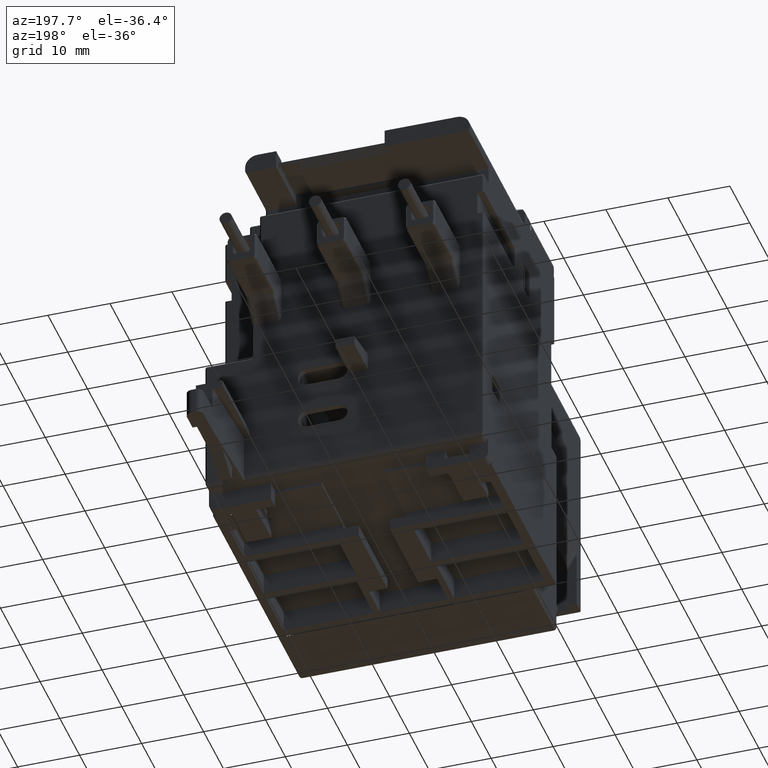
[diagram: clean part render]
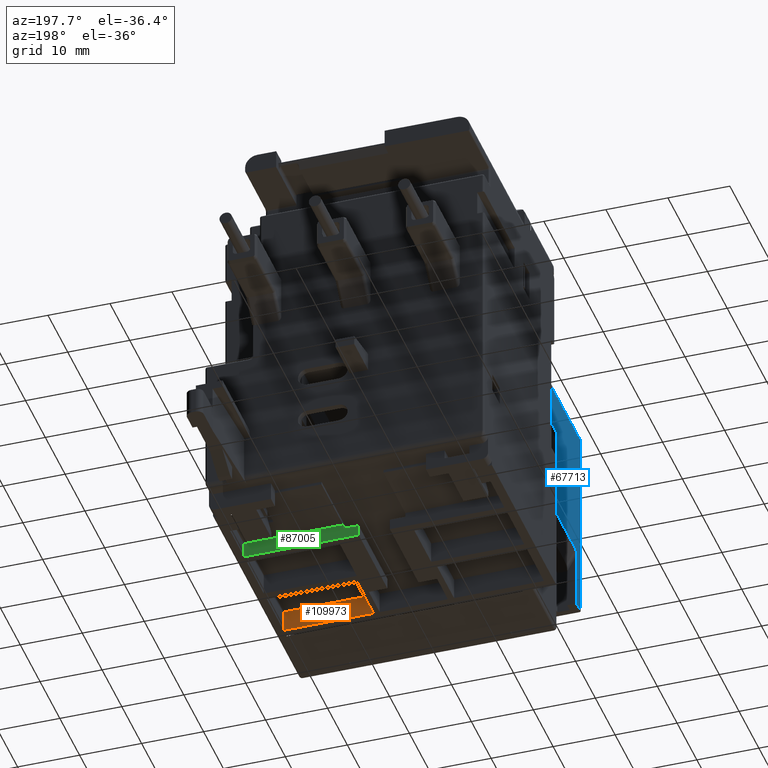
[diagram: same view with three faces highlighted in distinct colors, each labeled with its STEP entity id]
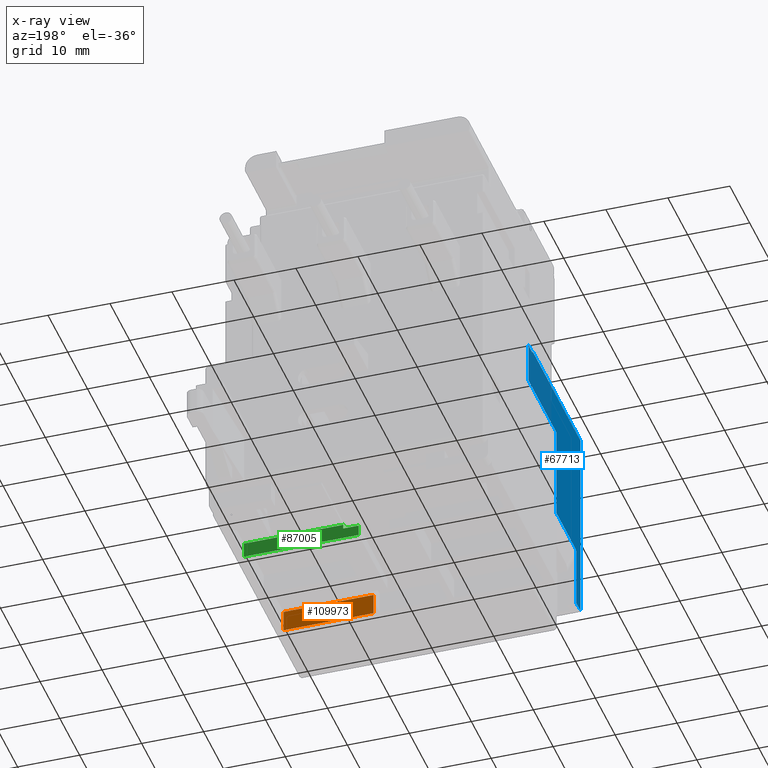
[diagram: x-ray of the same camera — body ghosted, the three highlighted faces saturated]
A machine part, auxiliary view with three faces highlighted in distinct colors.
The next image is the same camera in x-ray (body ghosted, the three faces saturated) — at least one of them is partly hidden behind the body in this view.
Their STEP definitions:

[orange] entity #109973 — the highlighted planar face has unit normal (0, 1, 0).
#56406=DIRECTION('',(1.E0,0.E0,0.E0));
#56407=VECTOR('',#56406,5.708661417323E-1);
#56408=CARTESIAN_POINT('',(2.559055118110E-1,-3.543307086614E-2,
-2.303149606299E0));
#56409=LINE('',#56408,#56407);
#56413=DIRECTION('',(0.E0,0.E0,-1.E0));
#56414=VECTOR('',#56413,1.377952755906E-1);
#56415=CARTESIAN_POINT('',(2.559055118110E-1,-3.543307086614E-2,
-2.165354330709E0));
#56416=LINE('',#56415,#56414);
#56427=DIRECTION('',(0.E0,0.E0,-1.E0));
#56428=VECTOR('',#56427,1.377952755906E-1);
#56429=CARTESIAN_POINT('',(8.267716535433E-1,-3.543307086614E-2,
-2.165354330709E0));
#56430=LINE('',#56429,#56428);
#56448=DIRECTION('',(1.E0,0.E0,0.E0));
#56449=VECTOR('',#56448,5.708661417323E-1);
#56450=CARTESIAN_POINT('',(2.559055118110E-1,-3.543307086614E-2,
-2.165354330709E0));
#56451=LINE('',#56450,#56449);
#57633=CARTESIAN_POINT('',(2.559055118110E-1,-3.543307086614E-2,
-2.303149606299E0));
#57635=VERTEX_POINT('',#57633);
#57639=CARTESIAN_POINT('',(8.267716535433E-1,-3.543307086614E-2,
-2.303149606299E0));
#57640=VERTEX_POINT('',#57639);
#67003=CARTESIAN_POINT('',(2.559055118110E-1,-3.543307086614E-2,
-2.165354330709E0));
#67004=VERTEX_POINT('',#67003);
#67007=CARTESIAN_POINT('',(8.267716535433E-1,-3.543307086614E-2,
-2.165354330709E0));
#67008=VERTEX_POINT('',#67007);
#109960=CARTESIAN_POINT('',(2.559055118110E-1,-3.543307086614E-2,
-2.165354330709E0));
#109961=DIRECTION('',(0.E0,1.E0,0.E0));
#109962=DIRECTION('',(-1.E0,0.E0,0.E0));
#109963=AXIS2_PLACEMENT_3D('',#109960,#109961,#109962);
#109964=PLANE('',#109963);
#109965=ORIENTED_EDGE('',*,*,#68142,.T.);
#109967=ORIENTED_EDGE('',*,*,#109966,.F.);
#109969=ORIENTED_EDGE('',*,*,#109968,.F.);
#109970=ORIENTED_EDGE('',*,*,#109951,.T.);
#109971=EDGE_LOOP('',(#109965,#109967,#109969,#109970));
#109972=FACE_OUTER_BOUND('',#109971,.F.);
#68142=EDGE_CURVE('',#57635,#57640,#56409,.T.);
#109951=EDGE_CURVE('',#67004,#57635,#56416,.T.);
#109966=EDGE_CURVE('',#67008,#57640,#56430,.T.);
#109968=EDGE_CURVE('',#67004,#67008,#56451,.T.);
#109973=ADVANCED_FACE('',(#109972),#109964,.T.);

[blue] entity #67713 — the highlighted planar face has unit normal (-1, 0, 0).
#945=DIRECTION('',(0.E0,0.E0,1.E0));
#946=VECTOR('',#945,1.279527559055E0);
#947=CARTESIAN_POINT('',(-7.421259842520E-1,-1.027559055118E0,
-1.811023622047E0));
#948=LINE('',#947,#946);
#976=DIRECTION('',(0.E0,1.E0,0.E0));
#977=VECTOR('',#976,9.527559055118E-1);
#978=CARTESIAN_POINT('',(-7.421259842520E-1,-1.027559055118E0,
-5.314960629921E-1));
#979=LINE('',#978,#977);
#990=DIRECTION('',(0.E0,1.E0,0.E0));
#991=VECTOR('',#990,7.874015748031E-2);
#992=CARTESIAN_POINT('',(-7.421259842520E-1,-1.027559055118E0,
-1.811023622047E0));
#993=LINE('',#992,#991);
#997=DIRECTION('',(0.E0,0.E0,1.E0));
#998=VECTOR('',#997,6.063749523091E-1);
#999=CARTESIAN_POINT('',(-7.421259842520E-1,-5.472440944882E-1,
-1.413461566482E0));
#1000=LINE('',#999,#998);
#1004=DIRECTION('',(0.E0,0.E0,1.E0));
#1005=VECTOR('',#1004,1.377952755906E-1);
#1006=CARTESIAN_POINT('',(-7.421259842520E-1,3.937007874016E-3,
-8.070866141732E-1));
#1007=LINE('',#1006,#1005);
#1011=DIRECTION('',(0.E0,-1.E0,0.E0));
#1012=VECTOR('',#1011,7.874015748031E-2);
#1013=CARTESIAN_POINT('',(-7.421259842520E-1,3.937007874016E-3,
-5.433070866142E-1));
#1014=LINE('',#1013,#1012);
#1018=DIRECTION('',(0.E0,0.E0,1.E0));
#1019=VECTOR('',#1018,1.181102362205E-2);
#1020=CARTESIAN_POINT('',(-7.421259842520E-1,-7.480314960630E-2,
-5.433070866142E-1));
#1021=LINE('',#1020,#1019);
#19252=DIRECTION('',(0.E0,0.E0,-1.E0));
#19253=VECTOR('',#19252,1.259842519685E-1);
#19254=CARTESIAN_POINT('',(-7.421259842520E-1,3.937007874016E-3,
-5.433070866142E-1));
#19255=LINE('',#19254,#19253);
#27008=DIRECTION('',(1.412890423215E-13,-1.E0,1.133800956901E-13));
#27009=VECTOR('',#27008,3.818897637795E-1);
#27010=CARTESIAN_POINT('',(-7.421259842520E-1,-5.472440944882E-1,
-1.413461566482E0));
#27011=LINE('',#27010,#27009);
#27022=CARTESIAN_POINT('',(-7.421259842520E-1,-9.291338582677E-1,
-1.413461566482E0));
#27023=CARTESIAN_POINT('',(-7.421259842520E-1,-9.303641732284E-1,
-1.413461566482E0));
#27024=CARTESIAN_POINT('',(-7.421259842520E-1,-9.324048428627E-1,
-1.413881526769E0));
#27025=CARTESIAN_POINT('',(-7.421259842520E-1,-9.357211669453E-1,
-1.415486462529E0));
#27026=CARTESIAN_POINT('',(-7.421259842520E-1,-9.389489504148E-1,
-1.418410253863E0));
#27027=CARTESIAN_POINT('',(-7.421259842520E-1,-9.419970741579E-1,
-1.422744019883E0));
#27028=CARTESIAN_POINT('',(-7.421259842520E-1,-9.452191154383E-1,
-1.429364498288E0));
#27029=CARTESIAN_POINT('',(-7.421259842520E-1,-9.479381971682E-1,
-1.438948566164E0));
#27030=CARTESIAN_POINT('',(-7.421259842520E-1,-9.488188976378E-1,
-1.447910385380E0));
#27031=CARTESIAN_POINT('',(-7.421259842520E-1,-9.488188976378E-1,
-1.452831645222E0));
#27057=DIRECTION('',(0.E0,0.E0,-1.E0));
#27058=VECTOR('',#27057,3.581919768248E-1);
#27059=CARTESIAN_POINT('',(-7.421259842520E-1,-9.488188976378E-1,
-1.452831645222E0));
#27060=LINE('',#27059,#27058);
#42222=DIRECTION('',(0.E0,-1.E0,0.E0));
#42223=VECTOR('',#42222,5.511811023622E-1);
#42224=CARTESIAN_POINT('',(-7.421259842520E-1,3.937007874016E-3,
-8.070866141732E-1));
#42225=LINE('',#42224,#42223);
#57278=CARTESIAN_POINT('',(-7.421259842520E-1,-1.027559055118E0,
-5.314960629921E-1));
#57279=VERTEX_POINT('',#57278);
#57280=CARTESIAN_POINT('',(-7.421259842520E-1,-1.027559055118E0,
-1.811023622047E0));
#57281=VERTEX_POINT('',#57280);
#57284=CARTESIAN_POINT('',(-7.421259842520E-1,-7.480314960630E-2,
-5.314960629921E-1));
#57285=VERTEX_POINT('',#57284);
#57288=CARTESIAN_POINT('',(-7.421259842520E-1,-9.488188976378E-1,
-1.811023622047E0));
#57289=VERTEX_POINT('',#57288);
#57290=CARTESIAN_POINT('',(-7.421259842520E-1,-9.488188976378E-1,
-1.452831645222E0));
#57291=VERTEX_POINT('',#57290);
#57292=VERTEX_POINT('',#27022);
#57293=CARTESIAN_POINT('',(-7.421259842520E-1,-5.472440944882E-1,
-1.413461566482E0));
#57294=VERTEX_POINT('',#57293);
#57295=CARTESIAN_POINT('',(-7.421259842520E-1,-5.472440944882E-1,
-8.070866141732E-1));
#57296=VERTEX_POINT('',#57295);
#57297=CARTESIAN_POINT('',(-7.421259842520E-1,3.937007874016E-3,
-8.070866141732E-1));
#57298=VERTEX_POINT('',#57297);
#57299=CARTESIAN_POINT('',(-7.421259842520E-1,3.937007874016E-3,
-6.692913385827E-1));
#57300=VERTEX_POINT('',#57299);
#57301=CARTESIAN_POINT('',(-7.421259842520E-1,3.937007874016E-3,
-5.433070866142E-1));
#57302=VERTEX_POINT('',#57301);
#57303=CARTESIAN_POINT('',(-7.421259842520E-1,-7.480314960630E-2,
-5.433070866142E-1));
#57304=VERTEX_POINT('',#57303);
#67684=CARTESIAN_POINT('',(-7.421259842520E-1,-1.039370078740E0,
-4.527559055118E-1));
#67685=DIRECTION('',(-1.E0,0.E0,0.E0));
#67686=DIRECTION('',(0.E0,-1.E0,0.E0));
#67687=AXIS2_PLACEMENT_3D('',#67684,#67685,#67686);
#67688=PLANE('',#67687);
#67689=ORIENTED_EDGE('',*,*,#67674,.F.);
#67690=ORIENTED_EDGE('',*,*,#67650,.F.);
#67692=ORIENTED_EDGE('',*,*,#67691,.T.);
#67694=ORIENTED_EDGE('',*,*,#67693,.F.);
#67696=ORIENTED_EDGE('',*,*,#67695,.F.);
#67698=ORIENTED_EDGE('',*,*,#67697,.F.);
#67700=ORIENTED_EDGE('',*,*,#67699,.T.);
#67702=ORIENTED_EDGE('',*,*,#67701,.F.);
#67704=ORIENTED_EDGE('',*,*,#67703,.T.);
#67706=ORIENTED_EDGE('',*,*,#67705,.F.);
#67708=ORIENTED_EDGE('',*,*,#67707,.T.);
#67710=ORIENTED_EDGE('',*,*,#67709,.T.);
#67711=EDGE_LOOP('',(#67689,#67690,#67692,#67694,#67696,#67698,#67700,#67702,
#67704,#67706,#67708,#67710));
#67712=FACE_OUTER_BOUND('',#67711,.F.);
#27032=B_SPLINE_CURVE_WITH_KNOTS('',3,(#27022,#27023,#27024,#27025,#27026,
#27027,#27028,#27029,#27030,#27031),.UNSPECIFIED.,.F.,.F.,(4,1,1,1,1,1,1,4),(
0.E0,6.25E-2,1.25E-1,2.5E-1,3.75E-1,5.E-1,7.5E-1,1.E0),.UNSPECIFIED.);
#67650=EDGE_CURVE('',#57281,#57279,#948,.T.);
#67674=EDGE_CURVE('',#57279,#57285,#979,.T.);
#67691=EDGE_CURVE('',#57281,#57289,#993,.T.);
#67693=EDGE_CURVE('',#57291,#57289,#27060,.T.);
#67695=EDGE_CURVE('',#57292,#57291,#27032,.T.);
#67697=EDGE_CURVE('',#57294,#57292,#27011,.T.);
#67699=EDGE_CURVE('',#57294,#57296,#1000,.T.);
#67701=EDGE_CURVE('',#57298,#57296,#42225,.T.);
#67703=EDGE_CURVE('',#57298,#57300,#1007,.T.);
#67705=EDGE_CURVE('',#57302,#57300,#19255,.T.);
#67707=EDGE_CURVE('',#57302,#57304,#1014,.T.);
#67709=EDGE_CURVE('',#57304,#57285,#1021,.T.);
#67713=ADVANCED_FACE('',(#67712),#67688,.T.);

[green] entity #87005 — the highlighted planar face has unit normal (0, 1, 0).
#27883=DIRECTION('',(1.E0,0.E0,0.E0));
#27884=VECTOR('',#27883,6.299212598425E-1);
#27885=CARTESIAN_POINT('',(1.968503937008E-1,7.519685039370E-1,
-2.204724409449E0));
#27886=LINE('',#27885,#27884);
#28219=DIRECTION('',(0.E0,0.E0,-1.E0));
#28220=VECTOR('',#28219,9.842519685039E-2);
#28221=CARTESIAN_POINT('',(8.267716535433E-1,7.519685039370E-1,
-2.204724409449E0));
#28222=LINE('',#28221,#28220);
#28226=DIRECTION('',(-1.E0,0.E0,0.E0));
#28227=VECTOR('',#28226,9.842519685039E-2);
#28228=CARTESIAN_POINT('',(1.968503937008E-1,7.519685039370E-1,
-2.232283464567E0));
#28229=LINE('',#28228,#28227);
#28233=DIRECTION('',(0.E0,0.E0,-1.E0));
#28234=VECTOR('',#28233,7.086614173228E-2);
#28235=CARTESIAN_POINT('',(9.842519685039E-2,7.519685039370E-1,
-2.232283464567E0));
#28236=LINE('',#28235,#28234);
#28240=DIRECTION('',(1.E0,0.E0,0.E0));
#28241=VECTOR('',#28240,7.283464566929E-1);
#28242=CARTESIAN_POINT('',(9.842519685039E-2,7.519685039370E-1,
-2.303149606299E0));
#28243=LINE('',#28242,#28241);
#28247=DIRECTION('',(0.E0,0.E0,-1.E0));
#28248=VECTOR('',#28247,2.755905511811E-2);
#28249=CARTESIAN_POINT('',(1.968503937008E-1,7.519685039370E-1,
-2.204724409449E0));
#28250=LINE('',#28249,#28248);
#57545=CARTESIAN_POINT('',(8.267716535433E-1,7.519685039370E-1,
-2.303149606299E0));
#57546=VERTEX_POINT('',#57545);
#57547=CARTESIAN_POINT('',(9.842519685039E-2,7.519685039370E-1,
-2.303149606299E0));
#57548=VERTEX_POINT('',#57547);
#63547=CARTESIAN_POINT('',(1.968503937008E-1,7.519685039370E-1,
-2.232283464567E0));
#63548=VERTEX_POINT('',#63547);
#63549=CARTESIAN_POINT('',(1.968503937008E-1,7.519685039370E-1,
-2.204724409449E0));
#63550=VERTEX_POINT('',#63549);
#63557=CARTESIAN_POINT('',(8.267716535433E-1,7.519685039370E-1,
-2.204724409449E0));
#63558=VERTEX_POINT('',#63557);
#63615=CARTESIAN_POINT('',(9.842519685039E-2,7.519685039370E-1,
-2.232283464567E0));
#63616=VERTEX_POINT('',#63615);
#86990=CARTESIAN_POINT('',(1.968503937008E-1,7.519685039370E-1,
-2.204724409449E0));
#86991=DIRECTION('',(0.E0,1.E0,0.E0));
#86992=DIRECTION('',(0.E0,0.E0,1.E0));
#86993=AXIS2_PLACEMENT_3D('',#86990,#86991,#86992);
#86994=PLANE('',#86993);
#86996=ORIENTED_EDGE('',*,*,#86995,.T.);
#86998=ORIENTED_EDGE('',*,*,#86997,.T.);
#86999=ORIENTED_EDGE('',*,*,#68036,.T.);
#87000=ORIENTED_EDGE('',*,*,#86973,.F.);
#87001=ORIENTED_EDGE('',*,*,#86740,.F.);
#87002=ORIENTED_EDGE('',*,*,#86708,.T.);
#87003=EDGE_LOOP('',(#86996,#86998,#86999,#87000,#87001,#87002));
#87004=FACE_OUTER_BOUND('',#87003,.F.);
#68036=EDGE_CURVE('',#57548,#57546,#28243,.T.);
#86708=EDGE_CURVE('',#63550,#63548,#28250,.T.);
#86740=EDGE_CURVE('',#63550,#63558,#27886,.T.);
#86973=EDGE_CURVE('',#63558,#57546,#28222,.T.);
#86995=EDGE_CURVE('',#63548,#63616,#28229,.T.);
#86997=EDGE_CURVE('',#63616,#57548,#28236,.T.);
#87005=ADVANCED_FACE('',(#87004),#86994,.T.);